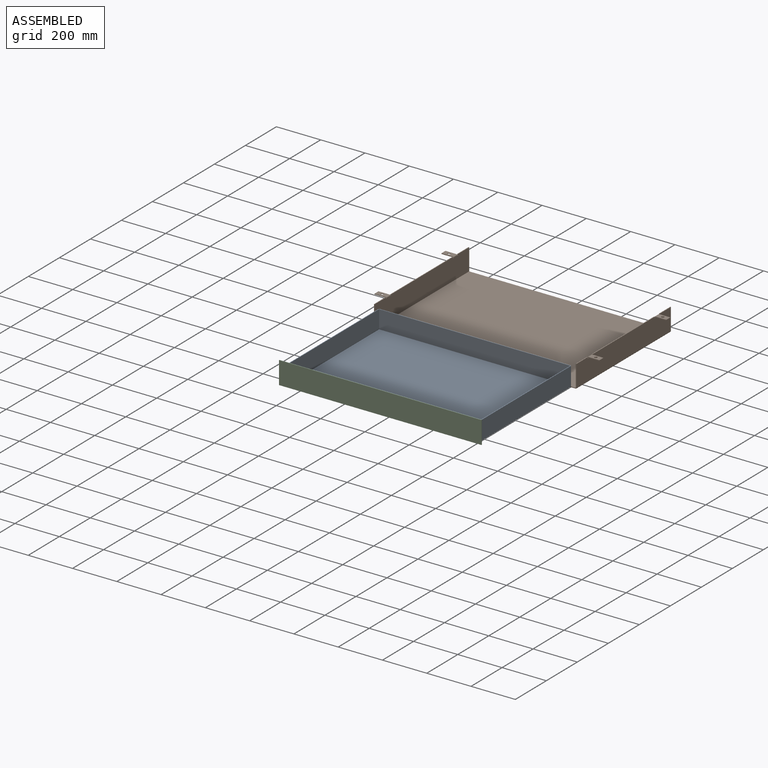
[diagram: assembled view]
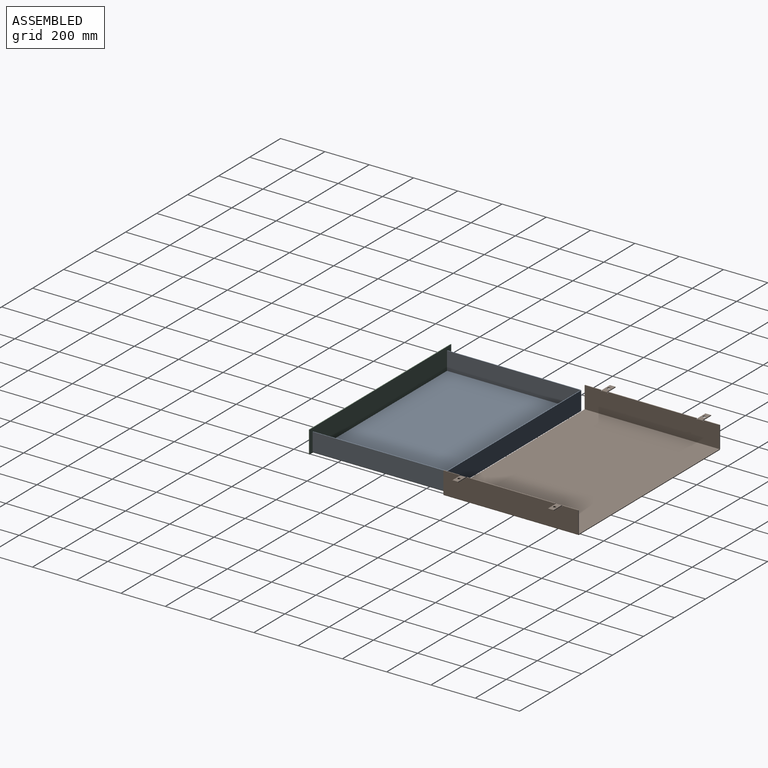
[diagram: assembled view, second angle]
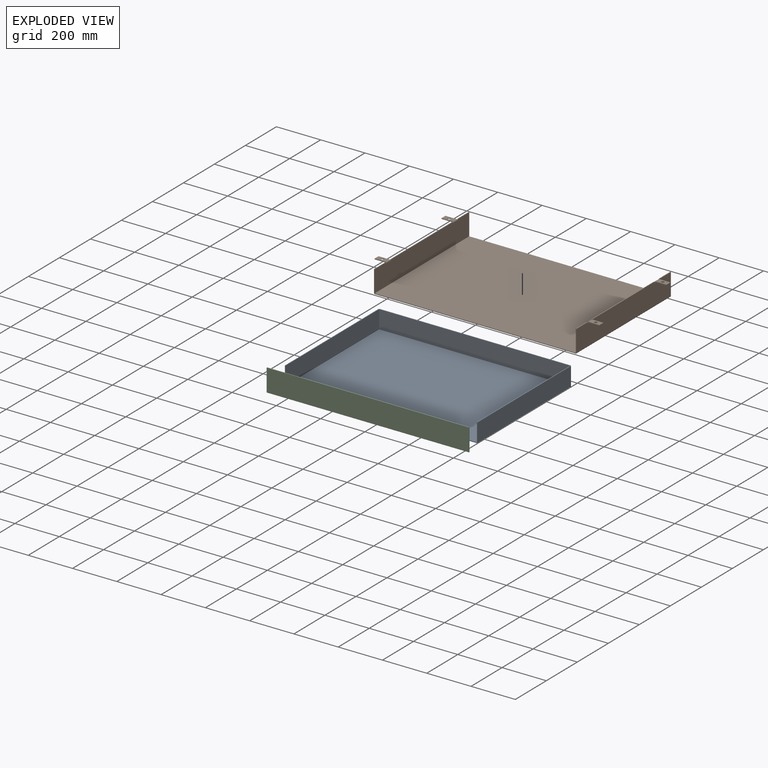
[diagram: exploded view]
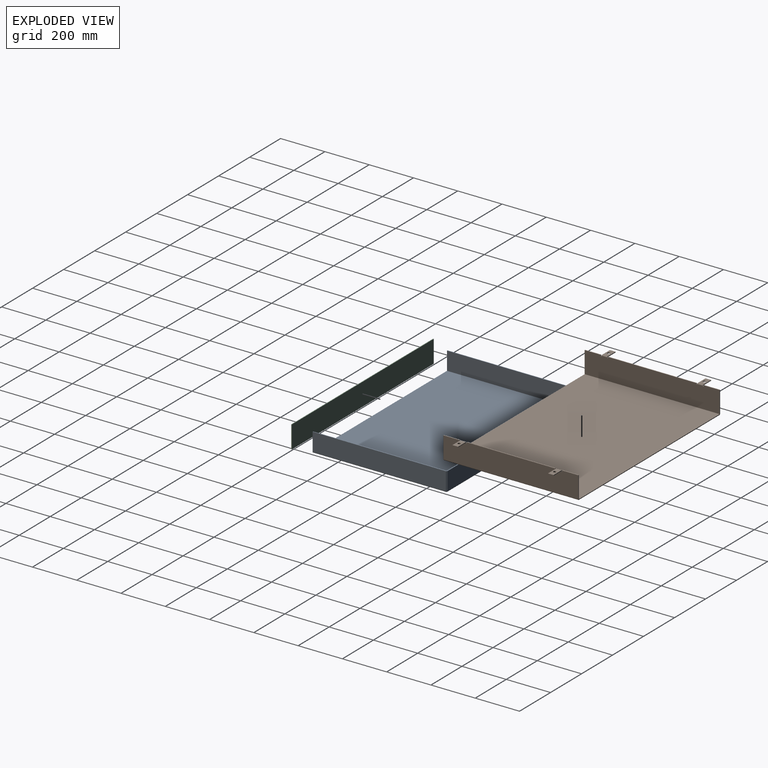
[diagram: exploded view, second angle]
ASSEMBLY  parts=3 mates=2
PART A: 34 faces, bbox 870x606.4x85.7 mm
  f0: plane 3.18x0.23mm, normal (0,0,-1), area 0.7mm2, adj f2,f5,f6,f30
  f1: plane 3.18x0.23mm, normal (0,0,-1), area 0.7mm2, adj f4,f5,f6,f31
  f2: plane 82.3x3.18mm, normal (1,0,0), area 261.3mm2, adj f0,f3,f5,f6
  f3: plane 863.55x3.18mm, normal (0,0,1), area 2741.8mm2, adj f2,f4,f5,f6
  f4: plane 82.3x3.18mm, normal (-1,0,0), area 261.3mm2, adj f1,f3,f5,f6
  f5: plane 863.55x82.3mm, normal (0,-1,0), area 71066.6mm2, adj f0,f1,f2,f3,f4,f33
  f6: plane 863.55x82.3mm, normal (0,1,0), area 71066.6mm2, adj f0,f1,f2,f3,f4,f32
  f7: plane 863.09x3.18mm, normal (0,-1,0), area 2740.3mm2, adj f8,f9,f16,f26
  f8: plane 863.09x603mm, normal (0,0,1), area 520441mm2, adj f7,f19,f29,f33
  f9: plane 863.09x603mm, normal (0,0,-1), area 520441mm2, adj f7,f18,f28,f32
  f10: plane 3.18x0.23mm, normal (0,0,-1), area 0.7mm2, adj f11,f14,f15,f17
  f11: plane 82.3x3.18mm, normal (0,1,0), area 261.3mm2, adj f10,f12,f14,f15
  f12: plane 603.22x3.18mm, normal (0,0,1), area 1915.2mm2, adj f11,f13,f14,f15
  f13: plane 82.3x3.18mm, normal (0,-1,0), area 261.3mm2, adj f12,f14,f15,f16
  f14: plane 603.22x82.3mm, normal (1,0,0), area 49643mm2, adj f10,f11,f12,f13,f19
  f15: plane 603.22x82.3mm, normal (-1,0,0), area 49643mm2, adj f10,f11,f12,f13,f18
  f16: plane 3.43x3.43mm, normal (0,-1,0), area 9.2mm2, adj f7,f13,f18,f19
  f17: plane 3.43x3.43mm, normal (0,1,0), area 9.2mm2, adj f10,f18,f19,f31
  f18: cylinder r=3.43mm len=603mm, axis (0,-1,0), area 3247.9mm2, adj f9,f15,f16,f17
  f19: cylinder r=0.25mm len=603mm, axis (0,-1,0), area 240.6mm2, adj f8,f14,f16,f17
  f20: plane 3.18x0.23mm, normal (0,0,-1), area 0.7mm2, adj f23,f24,f25,f27
  f21: plane 82.3x3.18mm, normal (0,-1,0), area 261.3mm2, adj f22,f24,f25,f26
  f22: plane 603.22x3.18mm, normal (0,0,1), area 1915.2mm2, adj f21,f23,f24,f25
  f23: plane 82.3x3.18mm, normal (0,1,0), area 261.3mm2, adj f20,f22,f24,f25
  f24: plane 603.22x82.3mm, normal (-1,0,0), area 49643mm2, adj f20,f21,f22,f23,f29
  f25: plane 603.22x82.3mm, normal (1,0,0), area 49643mm2, adj f20,f21,f22,f23,f28
  f26: plane 3.43x3.43mm, normal (0,-1,0), area 9.2mm2, adj f7,f21,f28,f29
  f27: plane 3.43x3.43mm, normal (0,1,0), area 9.2mm2, adj f20,f28,f29,f30
  f28: cylinder r=3.43mm len=603mm, axis (0,-1,0), area 3247.9mm2, adj f9,f25,f26,f27
  f29: cylinder r=0.25mm len=603mm, axis (0,-1,0), area 240.6mm2, adj f8,f24,f26,f27
  f30: plane 3.43x3.43mm, normal (1,0,0), area 9.2mm2, adj f0,f27,f32,f33
  f31: plane 3.43x3.43mm, normal (-1,0,0), area 9.2mm2, adj f1,f17,f32,f33
  f32: cylinder r=3.43mm len=863.09mm, axis (1,0,0), area 4648.8mm2, adj f6,f9,f30,f31
  f33: cylinder r=0.25mm len=863.09mm, axis (1,0,0), area 344.4mm2, adj f5,f8,f30,f31
PART B: 90 faces, bbox 1016x101.6x609.6 mm
  f0: plane 907.54x3.18mm, normal (0,0,-1), area 2881.4mm2, adj f2,f3,f43,f86
  f1: plane 907.54x3.18mm, normal (0,0,1), area 2881.4mm2, adj f2,f3,f44,f87
  f2: plane 907.54x609.6mm, normal (0,1,0), area 553237.6mm2, adj f0,f1,f45,f88
  f3: plane 907.54x609.6mm, normal (0,-1,0), area 553237.6mm2, adj f0,f1,f46,f89
  f4: plane 399.65x3.18mm, normal (0,-1,0), area 1268.9mm2, adj f6,f7,f16,f19
  f5: plane 72.83x3.18mm, normal (0,-1,0), area 231.2mm2, adj f6,f7,f10,f22
  f6: plane 609.6x98.17mm, normal (-1,0,0), area 59605mm2, adj f4,f5,f8,f9,f10,f11,f12,f13
  f7: plane 609.6x98.17mm, normal (1,0,0), area 59605mm2, adj f4,f5,f8,f9,f10,f11,f12,f13
  f8: plane 72.83x3.18mm, normal (0,-1,0), area 231.2mm2, adj f6,f7,f9,f13
  f9: plane 98.17x3.18mm, normal (0,0,1), area 311.7mm2, adj f6,f7,f8,f44
  f10: plane 98.17x3.18mm, normal (0,0,-1), area 311.7mm2, adj f5,f6,f7,f43
  f11: plane 3.18x0.13mm, normal (0,0,1), area 0.4mm2, adj f6,f7,f12,f30
  f12: cylinder r=1.69mm len=3.37mm, axis (1,0,0), area 16.8mm2, adj f6,f7,f11,f13
  f13: plane 3.56x3.18mm, normal (0,0,-1), area 11.3mm2, adj f6,f7,f8,f12
  f14: plane 3.18x0.13mm, normal (0,0,-1), area 0.4mm2, adj f6,f7,f15,f29
  f15: cylinder r=1.69mm len=3.37mm, axis (1,0,0), area 16.8mm2, adj f6,f7,f14,f16
  f16: plane 3.56x3.18mm, normal (0,0,1), area 11.3mm2, adj f4,f6,f7,f15
  f17: plane 3.18x0.13mm, normal (0,0,1), area 0.4mm2, adj f6,f7,f18,f39
  f18: cylinder r=1.69mm len=3.37mm, axis (1,0,0), area 16.8mm2, adj f6,f7,f17,f19
  f19: plane 3.56x3.18mm, normal (0,0,-1), area 11.3mm2, adj f4,f6,f7,f18
  f20: plane 3.18x0.13mm, normal (0,0,-1), area 0.4mm2, adj f6,f7,f21,f40
  f21: cylinder r=1.69mm len=3.37mm, axis (1,0,0), area 16.8mm2, adj f6,f7,f20,f22
  f22: plane 3.56x3.18mm, normal (0,0,1), area 11.3mm2, adj f5,f6,f7,f21
  f23: plane 25.4x3.18mm, normal (-1,0,0), area 80.6mm2, adj f24,f26,f27,f28
  f24: plane 50.55x3.18mm, normal (0,0,1), area 160.5mm2, adj f23,f27,f28,f30
  f25: cylinder r=6.35mm len=12.7mm, axis (0,-1,0), area 126.7mm2, adj f27,f28
  f26: plane 50.55x3.18mm, normal (0,0,-1), area 160.5mm2, adj f23,f27,f28,f29
  f27: plane 50.55x25.4mm, normal (0,1,0), area 1157.2mm2, adj f23,f24,f25,f26,f32
  f28: plane 50.55x25.4mm, normal (0,-1,0), area 1157.2mm2, adj f23,f24,f25,f26,f31
  f29: plane 3.43x3.43mm, normal (0,0,-1), area 9.2mm2, adj f14,f26,f31,f32
  f30: plane 3.43x3.43mm, normal (0,0,1), area 9.2mm2, adj f11,f24,f31,f32
  f31: cylinder r=3.43mm len=25.4mm, axis (0,0,-1), area 136.8mm2, adj f7,f28,f29,f30
  f32: cylinder r=0.25mm len=25.4mm, axis (0,0,-1), area 10.1mm2, adj f6,f27,f29,f30
  f33: plane 25.4x3.18mm, normal (-1,0,0), area 80.6mm2, adj f34,f36,f37,f38
  f34: plane 50.55x3.18mm, normal (0,0,1), area 160.5mm2, adj f33,f37,f38,f39
  f35: cylinder r=6.35mm len=12.7mm, axis (0,1,0), area 126.7mm2, adj f37,f38
  f36: plane 50.55x3.18mm, normal (0,0,-1), area 160.5mm2, adj f33,f37,f38,f40
  f37: plane 50.55x25.4mm, normal (0,1,0), area 1157.2mm2, adj f33,f34,f35,f36,f42
  f38: plane 50.55x25.4mm, normal (0,-1,0), area 1157.2mm2, adj f33,f34,f35,f36,f41
  f39: plane 3.43x3.43mm, normal (0,0,1), area 9.2mm2, adj f17,f34,f41,f42
  f40: plane 3.43x3.43mm, normal (0,0,-1), area 9.2mm2, adj f20,f36,f41,f42
  f41: cylinder r=3.43mm len=25.4mm, axis (0,0,1), area 136.8mm2, adj f7,f38,f39,f40
  f42: cylinder r=0.25mm len=25.4mm, axis (0,0,1), area 10.1mm2, adj f6,f37,f39,f40
  f43: plane 3.43x3.43mm, normal (0,0,-1), area 9.2mm2, adj f0,f10,f45,f46
  f44: plane 3.43x3.43mm, normal (0,0,1), area 9.2mm2, adj f1,f9,f45,f46
  f45: cylinder r=3.43mm len=609.6mm, axis (0,0,-1), area 3283.5mm2, adj f2,f6,f43,f44
  f46: cylinder r=0.25mm len=609.6mm, axis (0,0,-1), area 243.2mm2, adj f3,f7,f43,f44
  f47: plane 72.83x3.18mm, normal (0,-1,0), area 231.2mm2, adj f49,f50,f53,f62
  f48: plane 399.65x3.18mm, normal (0,-1,0), area 1268.9mm2, adj f49,f50,f56,f58
  f49: plane 609.6x98.17mm, normal (1,0,0), area 59605mm2, adj f47,f48,f51,f52,f53,f54,f55,f56
  f50: plane 609.6x98.17mm, normal (-1,0,0), area 59605mm2, adj f47,f48,f51,f52,f53,f54,f55,f56
  f51: plane 72.83x3.18mm, normal (0,-1,0), area 231.2mm2, adj f49,f50,f52,f64
  f52: plane 98.17x3.18mm, normal (0,0,-1), area 311.7mm2, adj f49,f50,f51,f86
  f53: plane 98.17x3.18mm, normal (0,0,1), area 311.7mm2, adj f47,f49,f50,f87
  f54: plane 3.18x0.13mm, normal (0,0,1), area 0.4mm2, adj f49,f50,f55,f82
  f55: cylinder r=1.69mm len=3.37mm, axis (-1,0,0), area 16.8mm2, adj f49,f50,f54,f56
  f56: plane 3.56x3.18mm, normal (0,0,-1), area 11.3mm2, adj f48,f49,f50,f55
  f57: plane 3.18x0.13mm, normal (0,0,-1), area 0.4mm2, adj f49,f50,f59,f72
  f58: plane 3.56x3.18mm, normal (0,0,1), area 11.3mm2, adj f48,f49,f50,f59
  f59: cylinder r=1.69mm len=3.37mm, axis (-1,0,0), area 16.8mm2, adj f49,f50,f57,f58
  f60: plane 3.18x0.13mm, normal (0,0,1), area 0.4mm2, adj f49,f50,f61,f73
  f61: cylinder r=1.69mm len=3.37mm, axis (-1,0,0), area 16.8mm2, adj f49,f50,f60,f62
  f62: plane 3.56x3.18mm, normal (0,0,-1), area 11.3mm2, adj f47,f49,f50,f61
  f63: plane 3.18x0.13mm, normal (0,0,-1), area 0.4mm2, adj f49,f50,f65,f83
  f64: plane 3.56x3.18mm, normal (0,0,1), area 11.3mm2, adj f49,f50,f51,f65
  f65: cylinder r=1.69mm len=3.37mm, axis (-1,0,0), area 16.8mm2, adj f49,f50,f63,f64
  f66: plane 25.4x3.18mm, normal (1,0,0), area 80.6mm2, adj f67,f69,f70,f71
  f67: plane 50.55x3.18mm, normal (0,0,-1), area 160.5mm2, adj f66,f70,f71,f72
  f68: cylinder r=6.35mm len=12.7mm, axis (0,1,0), area 126.7mm2, adj f70,f71
  f69: plane 50.55x3.18mm, normal (0,0,1), area 160.5mm2, adj f66,f70,f71,f73
  f70: plane 50.55x25.4mm, normal (0,1,0), area 1157.2mm2, adj f66,f67,f68,f69,f75
  f71: plane 50.55x25.4mm, normal (0,-1,0), area 1157.2mm2, adj f66,f67,f68,f69,f74
  f72: plane 3.43x3.43mm, normal (0,0,-1), area 9.2mm2, adj f57,f67,f74,f75
  f73: plane 3.43x3.43mm, normal (0,0,1), area 9.2mm2, adj f60,f69,f74,f75
  f74: cylinder r=3.43mm len=25.4mm, axis (0,0,-1), area 136.8mm2, adj f50,f71,f72,f73
  f75: cylinder r=0.25mm len=25.4mm, axis (0,0,-1), area 10.1mm2, adj f49,f70,f72,f73
  f76: plane 25.4x3.18mm, normal (1,0,0), area 80.6mm2, adj f77,f79,f80,f81
  f77: plane 50.55x3.18mm, normal (0,0,-1), area 160.5mm2, adj f76,f80,f81,f83
  f78: cylinder r=6.35mm len=12.7mm, axis (0,-1,0), area 126.7mm2, adj f80,f81
  f79: plane 50.55x3.18mm, normal (0,0,1), area 160.5mm2, adj f76,f80,f81,f82
  f80: plane 50.55x25.4mm, normal (0,1,0), area 1157.2mm2, adj f76,f77,f78,f79,f85
  f81: plane 50.55x25.4mm, normal (0,-1,0), area 1157.2mm2, adj f76,f77,f78,f79,f84
  f82: plane 3.43x3.43mm, normal (0,0,1), area 9.2mm2, adj f54,f79,f84,f85
  f83: plane 3.43x3.43mm, normal (0,0,-1), area 9.2mm2, adj f63,f77,f84,f85
  f84: cylinder r=3.43mm len=25.4mm, axis (0,0,1), area 136.8mm2, adj f50,f81,f82,f83
  f85: cylinder r=0.25mm len=25.4mm, axis (0,0,1), area 10.1mm2, adj f49,f80,f82,f83
  f86: plane 3.43x3.43mm, normal (0,0,-1), area 9.2mm2, adj f0,f52,f88,f89
  f87: plane 3.43x3.43mm, normal (0,0,1), area 9.2mm2, adj f1,f53,f88,f89
  f88: cylinder r=3.43mm len=609.6mm, axis (0,0,-1), area 3283.5mm2, adj f2,f49,f86,f87
  f89: cylinder r=0.25mm len=609.6mm, axis (0,0,-1), area 243.2mm2, adj f3,f50,f86,f87
PART C: 6 faces, bbox 914.4x3.2x101.6 mm
  f0: plane 914.4x3.18mm, normal (0,0,-1), area 2903.2mm2, adj f1,f3,f4,f5
  f1: plane 101.6x3.18mm, normal (1,0,0), area 322.6mm2, adj f0,f2,f4,f5
  f2: plane 914.4x3.18mm, normal (0,0,1), area 2903.2mm2, adj f1,f3,f4,f5
  f3: plane 101.6x3.18mm, normal (-1,0,0), area 322.6mm2, adj f0,f2,f4,f5
  f4: plane 914.4x101.6mm, normal (0,-1,0), area 92903mm2, adj f0,f1,f2,f3
  f5: plane 914.4x101.6mm, normal (0,1,0), area 92903mm2, adj f0,f1,f2,f3
PLACE A rot(axis=(-1,0,0),0deg) t=(7.75,-479,-61.81)mm
PLACE B rot(axis=(-1,0,0),90deg) t=(10.24,-101.45,-55.46)mm fixed
PLACE C rot(axis=(0,1,0),180deg) t=(-15.65,-888.44,-26.5)mm
MATE parallel B.f3 <-> A.f9  axis (0,0,1) through (-1.87,19.49,-52.29)mm
MATE parallel C.f5 <-> A.f7  axis (0,1,0) through (-4.41,-891.61,-52.29)mm
